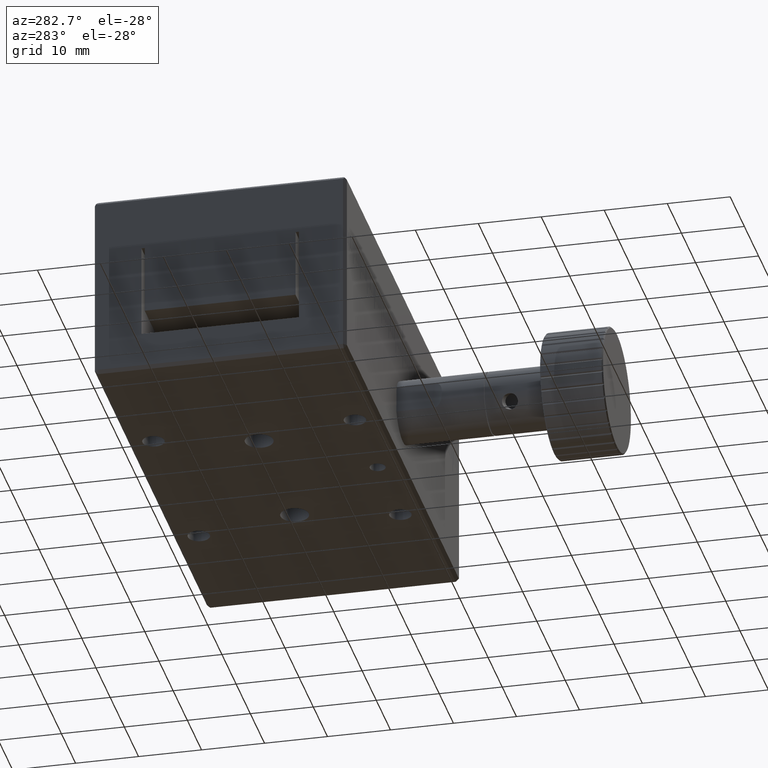
[diagram: clean part render]
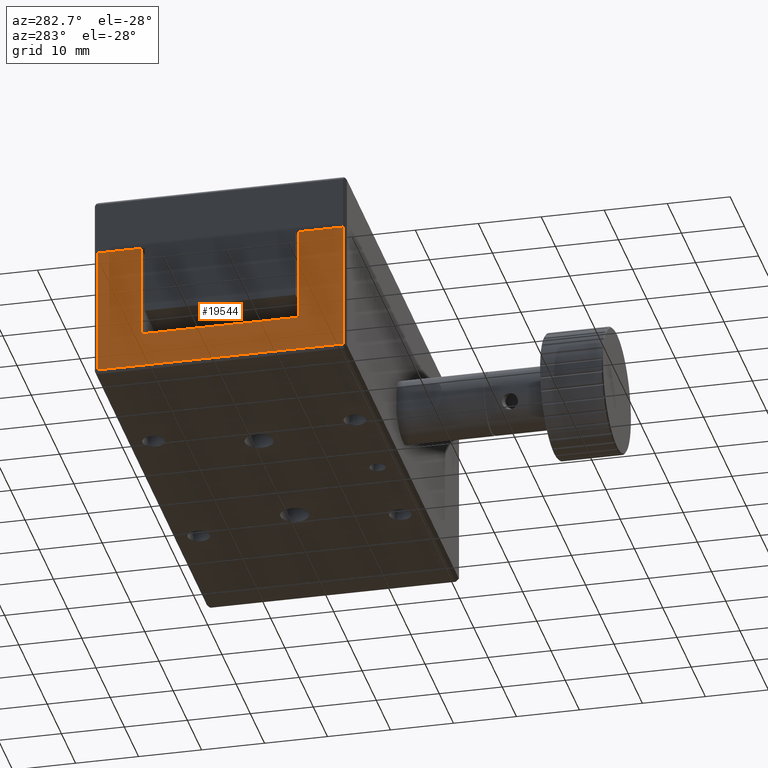
[diagram: same view with one face highlighted and labeled with its STEP entity id]
A machine part, auxiliary view. The second image highlights one B-rep face of the part: STEP entity #19544.
In plain terms, the highlighted planar face has unit normal (1, -0, 0).
Its self-contained STEP definition (entity closure, byte-faithful):
#66 = VECTOR ( 'NONE', #15588, 1000.000000000000000 ) ;
#110 = CARTESIAN_POINT ( 'NONE',  ( -40.00000000000000700, -12.50000001899999800, 10.75000000000000000 ) ) ;
#145 = DIRECTION ( 'NONE',  ( 0.0000000000000000000, 1.000000000000000000, 0.0000000000000000000 ) ) ;
#397 = VECTOR ( 'NONE', #14498, 1000.000000000000000 ) ;
#832 = CARTESIAN_POINT ( 'NONE',  ( -40.00000000000001400, -20.00000000000000000, 21.00000000000000000 ) ) ;
#1104 = CARTESIAN_POINT ( 'NONE',  ( -40.00000000000000700, -12.50000000949999900, 21.00000000000000000 ) ) ;
#2135 = VECTOR ( 'NONE', #3627, 1000.000000000000000 ) ;
#2583 = VECTOR ( 'NONE', #6524, 1000.000000000000000 ) ;
#2909 = PLANE ( 'NONE',  #11828 ) ;
#3202 = EDGE_CURVE ( 'NONE', #14148, #15480, #7515, .T. ) ;
#3627 = DIRECTION ( 'NONE',  ( 0.0000000000000000000, 0.0000000000000000000, -1.000000000000000000 ) ) ;
#4364 = ORIENTED_EDGE ( 'NONE', *, *, #3202, .T. ) ;
#5107 = EDGE_LOOP ( 'NONE', ( #7111, #6216, #18087, #4364, #6258, #6441, #7333, #17530 ) ) ;
#6177 = DIRECTION ( 'NONE',  ( 1.000000000000000000, -0.0000000000000000000, 0.0000000000000000000 ) ) ;
#6216 = ORIENTED_EDGE ( 'NONE', *, *, #14822, .F. ) ;
#6258 = ORIENTED_EDGE ( 'NONE', *, *, #11290, .F. ) ;
#6299 = EDGE_CURVE ( 'NONE', #10357, #14148, #11207, .T. ) ;
#6327 = CARTESIAN_POINT ( 'NONE',  ( -40.00000000000000000, 19.49999999937500000, 21.00000000000000400 ) ) ;
#6441 = ORIENTED_EDGE ( 'NONE', *, *, #10446, .F. ) ;
#6478 = LINE ( 'NONE', #13288, #2135 ) ;
#6524 = DIRECTION ( 'NONE',  ( 0.0000000000000000000, 1.000000000000000000, 0.0000000000000000000 ) ) ;
#7111 = ORIENTED_EDGE ( 'NONE', *, *, #19632, .T. ) ;
#7333 = ORIENTED_EDGE ( 'NONE', *, *, #20535, .F. ) ;
#7515 = LINE ( 'NONE', #8622, #15103 ) ;
#7532 = VECTOR ( 'NONE', #9842, 1000.000000000000000 ) ;
#7908 = VECTOR ( 'NONE', #145, 1000.000000000000000 ) ;
#8267 = CARTESIAN_POINT ( 'NONE',  ( -40.00000000000000000, 0.0000000000000000000, 0.5000000000000000000 ) ) ;
#8622 = CARTESIAN_POINT ( 'NONE',  ( -40.00000000000000000, 19.50000000000000000, 10.75000000000000000 ) ) ;
#8648 = CARTESIAN_POINT ( 'NONE',  ( -40.00000000000000700, -12.50000000633333400, 6.000000000000000900 ) ) ;
#9807 = VERTEX_POINT ( 'NONE', #15402 ) ;
#9842 = DIRECTION ( 'NONE',  ( -0.0000000000000000000, -0.0000000000000000000, 1.000000000000000000 ) ) ;
#10357 = VERTEX_POINT ( 'NONE', #15166 ) ;
#10446 = EDGE_CURVE ( 'NONE', #17612, #9807, #17284, .T. ) ;
#10587 = FACE_OUTER_BOUND ( 'NONE', #5107, .T. ) ;
#10708 = CARTESIAN_POINT ( 'NONE',  ( -40.00000000000000000, -19.50000000000000000, 10.75000000000000000 ) ) ;
#11207 = LINE ( 'NONE', #17809, #2583 ) ;
#11290 = EDGE_CURVE ( 'NONE', #9807, #15480, #12686, .T. ) ;
#11717 = CARTESIAN_POINT ( 'NONE',  ( -40.00000000000000000, 12.50000000949999900, 6.000000000749999200 ) ) ;
#11828 = AXIS2_PLACEMENT_3D ( 'NONE', #14203, #6177, #17450 ) ;
#12686 = LINE ( 'NONE', #8267, #7908 ) ;
#12867 = CARTESIAN_POINT ( 'NONE',  ( -40.00000000000000000, 0.0000000000000000000, 6.000000000000000000 ) ) ;
#13288 = CARTESIAN_POINT ( 'NONE',  ( -40.00000000000000000, 12.50000000000000000, 13.50000000000000200 ) ) ;
#13332 = LINE ( 'NONE', #12867, #397 ) ;
#13809 = DIRECTION ( 'NONE',  ( -0.0000000000000000000, -1.000000000000000000, -0.0000000000000000000 ) ) ;
#14148 = VERTEX_POINT ( 'NONE', #6327 ) ;
#14203 = CARTESIAN_POINT ( 'NONE',  ( -40.00000000000000000, -19.50000000000000000, 21.00000000000000000 ) ) ;
#14498 = DIRECTION ( 'NONE',  ( 0.0000000000000000000, 1.000000000000000000, 0.0000000000000000000 ) ) ;
#14822 = EDGE_CURVE ( 'NONE', #10357, #19196, #6478, .T. ) ;
#15103 = VECTOR ( 'NONE', #18277, 1000.000000000000000 ) ;
#15166 = CARTESIAN_POINT ( 'NONE',  ( -40.00000000000000700, 12.50000000475000000, 20.99999999999999600 ) ) ;
#15402 = CARTESIAN_POINT ( 'NONE',  ( -39.99999999978623300, -19.50000000017751500, 0.4999999999637501600 ) ) ;
#15480 = VERTEX_POINT ( 'NONE', #20949 ) ;
#15588 = DIRECTION ( 'NONE',  ( 0.0000000000000000000, 0.0000000000000000000, -1.000000000000000000 ) ) ;
#15977 = VERTEX_POINT ( 'NONE', #1104 ) ;
#16138 = LINE ( 'NONE', #110, #7532 ) ;
#16428 = LINE ( 'NONE', #832, #20686 ) ;
#16789 = VERTEX_POINT ( 'NONE', #8648 ) ;
#17284 = LINE ( 'NONE', #10708, #66 ) ;
#17450 = DIRECTION ( 'NONE',  ( 0.0000000000000000000, 0.0000000000000000000, -1.000000000000000000 ) ) ;
#17530 = ORIENTED_EDGE ( 'NONE', *, *, #19741, .F. ) ;
#17612 = VERTEX_POINT ( 'NONE', #18960 ) ;
#17809 = CARTESIAN_POINT ( 'NONE',  ( -40.00000000000000000, 16.25000000000000000, 21.00000000000000000 ) ) ;
#18087 = ORIENTED_EDGE ( 'NONE', *, *, #6299, .T. ) ;
#18277 = DIRECTION ( 'NONE',  ( 0.0000000000000000000, 0.0000000000000000000, -1.000000000000000000 ) ) ;
#18960 = CARTESIAN_POINT ( 'NONE',  ( -40.00000000000000700, -19.49999999999999300, 21.00000000000000000 ) ) ;
#19196 = VERTEX_POINT ( 'NONE', #11717 ) ;
#19544 = ADVANCED_FACE ( 'NONE', ( #10587 ), #2909, .F. ) ;
#19632 = EDGE_CURVE ( 'NONE', #16789, #19196, #13332, .T. ) ;
#19741 = EDGE_CURVE ( 'NONE', #16789, #15977, #16138, .T. ) ;
#20535 = EDGE_CURVE ( 'NONE', #15977, #17612, #16428, .T. ) ;
#20686 = VECTOR ( 'NONE', #13809, 1000.000000000000000 ) ;
#20949 = CARTESIAN_POINT ( 'NONE',  ( -39.99999999996375500, 19.50000000005437800, 0.5000000000362485600 ) ) ;